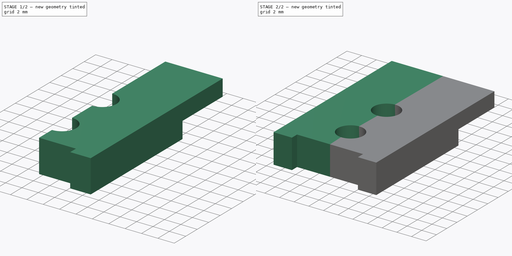
[diagram: build sequence overview — one tinted view per stage of 2, left to right]
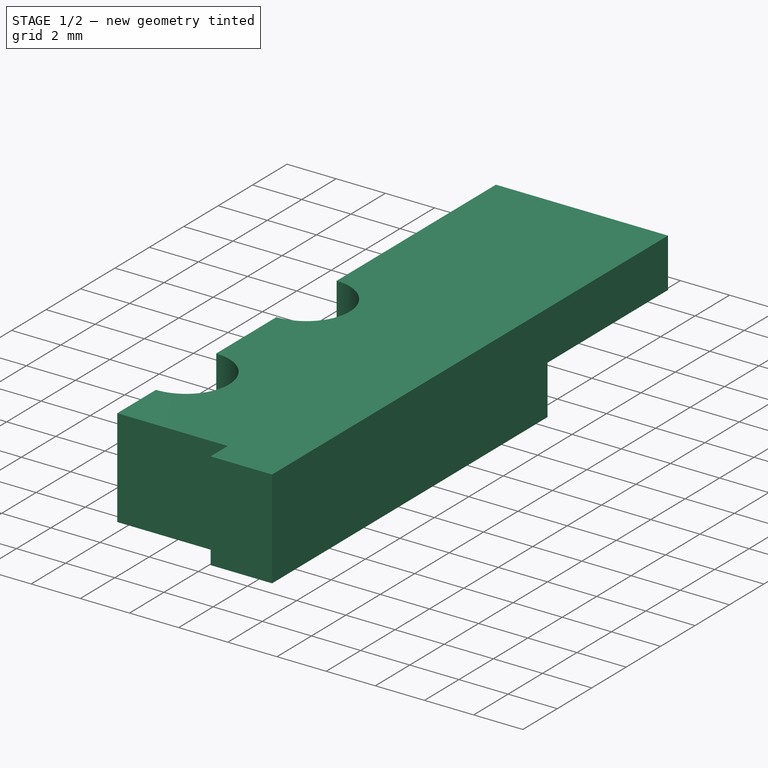
[diagram: stage 1 of 2 — iso view after this stage's code; geometry added in this stage tinted green]
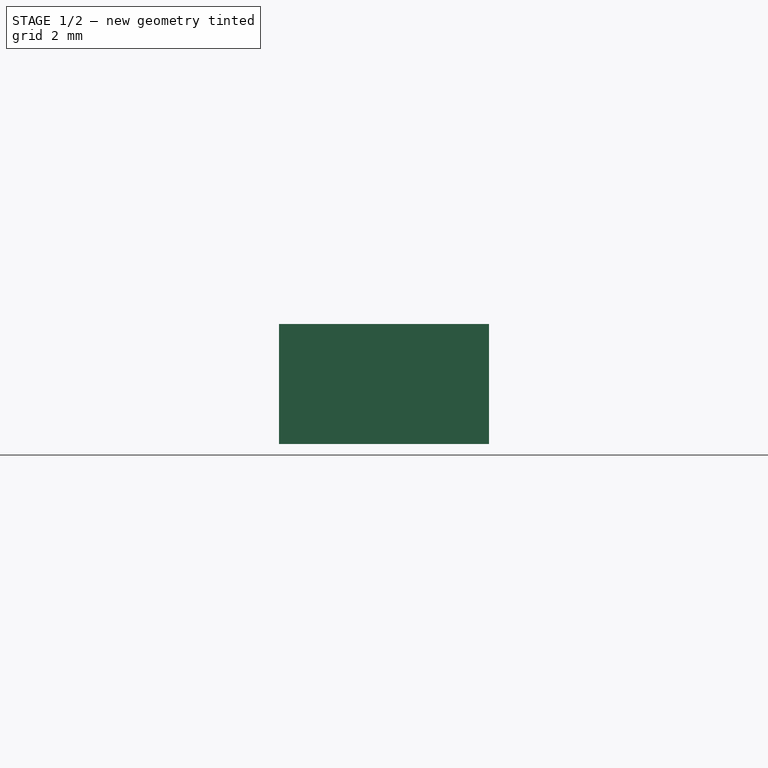
[diagram: stage 1 of 2 — front view after this stage's code; geometry added in this stage tinted green]
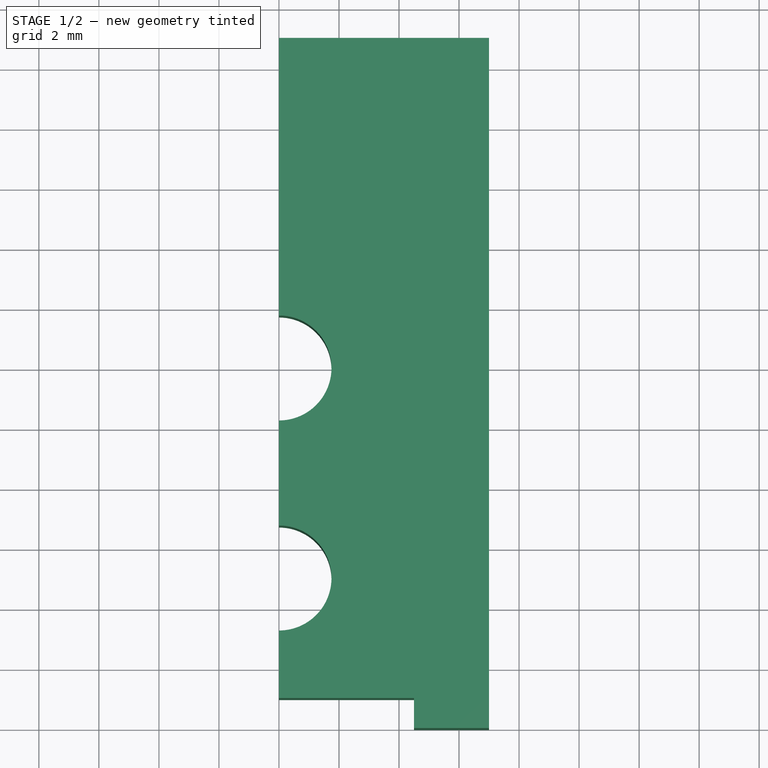
[diagram: stage 1 of 2 — top view after this stage's code; geometry added in this stage tinted green]
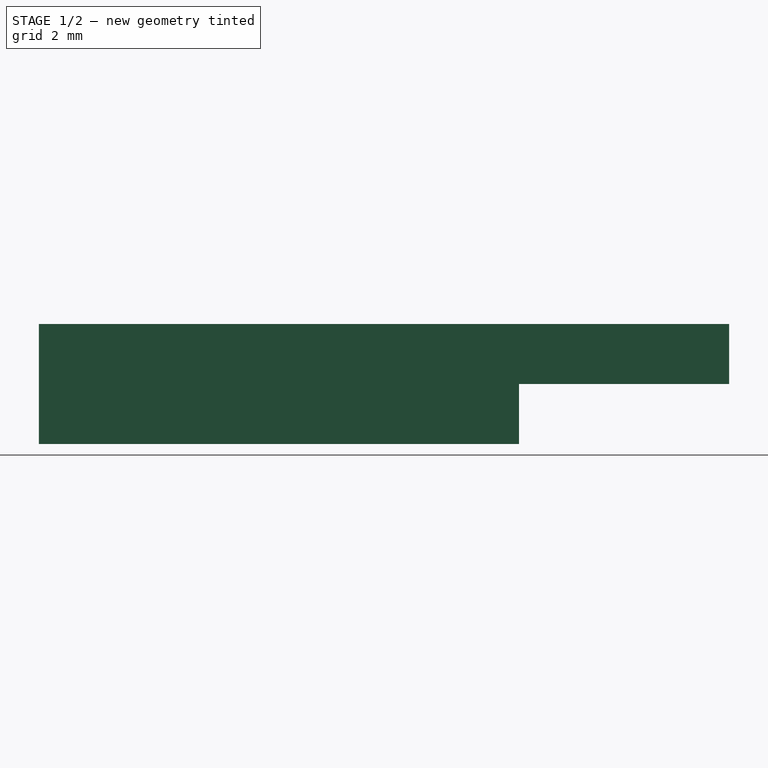
[diagram: stage 1 of 2 — right view after this stage's code; geometry added in this stage tinted green]
FCSTD DOCUMENT  (FreeCAD 0.19R24366 (Git))
Label: СхватОбечайки
License: All rights reserved
LicenseURL: http://en.wikipedia.org/wiki/All_rights_reserved
objects: Sketcher::SketchObject×2, PartDesign::Pad×1, PartDesign::Pocket×1, PartDesign::Mirrored×1, PartDesign::Body×1
note: 8 computed .brp shape members not serialized (recipe doc carries the construction recipe); baked Part::Feature solids carry a one-line shape summary decoded from their .brp

FEATURE [Sketcher::SketchObject] Sketch
  FullyConstrained = true
  MapMode = 5
  Support = -> [XY_Plane]
  sketch-geometry (11):
    g0: ArcOfCircle CenterX=0 CenterY=0 CenterZ=0 NormalX=0 NormalY=0 NormalZ=1 AngleXU=0 Radius=1.75 StartAngle=4.71239 EndAngle=7.85398
    g1: ArcOfCircle CenterX=0 CenterY=-7 CenterZ=0 NormalX=0 NormalY=0 NormalZ=1 AngleXU=0 Radius=1.75 StartAngle=4.71239 EndAngle=7.85398
    g2: LineSegment StartX=5e-16 StartY=-5.25 StartZ=0 EndX=0 EndY=-1.75 EndZ=0
    g3: LineSegment StartX=-3e-16 StartY=-8.75 StartZ=0 EndX=-3e-16 EndY=-11 EndZ=0
    g4: LineSegment StartX=-3e-16 StartY=-11 StartZ=0 EndX=4.5 EndY=-11 EndZ=0
    g5: LineSegment StartX=4.5 StartY=-11 StartZ=0 EndX=4.5 EndY=-12 EndZ=0
    g6: LineSegment StartX=4.5 StartY=-12 StartZ=0 EndX=7 EndY=-12 EndZ=0
    g7: LineSegment StartX=7 StartY=-12 StartZ=0 EndX=7 EndY=11 EndZ=0
    g8: LineSegment StartX=7 StartY=11 StartZ=0 EndX=0 EndY=11 EndZ=0
    g9: LineSegment StartX=0 StartY=11 StartZ=0 EndX=5e-16 EndY=1.75 EndZ=0
    g10: LineSegment StartX=0 StartY=4 StartZ=0 EndX=7 EndY=4 EndZ=0
  constraints (35):
    c: Coincident(g0,g-1)
    c: PointOnObject(g0,g-2)
    c: PointOnObject(g0,g-2)
    c: PointOnObject(g1,g-2)
    c: PointOnObject(g1,g-2)
    c: PointOnObject(g1,g-2)
    c: Coincident(g2,g1)
    c: Coincident(g2,g0)
    c: Coincident(g1,g3)
    c: Coincident(g3,g4)
    c: Horizontal(g4)
    c: Coincident(g4,g5)
    c: Vertical(g5)
    c: Coincident(g5,g6)
    c: Horizontal(g6)
    c: Coincident(g6,g7)
    c: Vertical(g7)
    c: Coincident(g7,g8)
    c: PointOnObject(g8,g-2)
    c: Horizontal(g8)
    c: Coincident(g8,g9)
    c: Coincident(g9,g0)
    c: Vertical(g3)
    c: Equal(g1,g0)
    c: Diameter(g0) = 3.5
    c: DistanceY(g1) = -7
    c: DistanceY(g3,g1) = 4
    c: DistanceX(g4) = 4.5
    c: PointOnObject(g10,g9)
    c: PointOnObject(g10,g7)
    c: Horizontal(g10)
    c: DistanceY(g10) = 4
    c: DistanceY(g10,g8) = 7
    c: Distance(g0,g7) = 7
    c: Distance(g5) = 1
FEATURE [Sketcher::SketchObject] Sketch001
  FullyConstrained = true
  MapMode = 5
  Support = -> [XY_Plane]
  expr: Constraints[34] = Sketch.Constraints[34]
  expr: Constraints[33] = Sketch.Constraints[33]
  expr: Constraints[27] = Sketch.Constraints[27]
  expr: Constraints[32] = Sketch.Constraints[32]
  expr: Constraints[26] = Sketch.Constraints[26]
  expr: Constraints[31] = Sketch.Constraints[31]
  expr: Constraints[25] = Sketch.Constraints[25]
  expr: Constraints[24] = Sketch.Constraints[24]
  sketch-geometry (15):
    g0: ArcOfCircle CenterX=0 CenterY=0 CenterZ=0 NormalX=0 NormalY=0 NormalZ=1 AngleXU=0 Radius=1.75 StartAngle=4.71239 EndAngle=7.85398
    g1: ArcOfCircle CenterX=0 CenterY=-7 CenterZ=0 NormalX=0 NormalY=0 NormalZ=1 AngleXU=0 Radius=1.75 StartAngle=4.71239 EndAngle=7.85398
    g2: LineSegment StartX=5e-16 StartY=-5.25 StartZ=0 EndX=-3e-16 EndY=-1.75 EndZ=0
    g3: LineSegment StartX=-3e-16 StartY=-8.75 StartZ=0 EndX=-3e-16 EndY=-11 EndZ=0
    g4: LineSegment StartX=-3e-16 StartY=-11 StartZ=0 EndX=4.5 EndY=-11 EndZ=0
    g5: LineSegment StartX=4.5 StartY=-11 StartZ=0 EndX=4.5 EndY=-12 EndZ=0
    g6: LineSegment StartX=4.5 StartY=-12 StartZ=0 EndX=7 EndY=-12 EndZ=0
    g7: LineSegment StartX=7 StartY=-12 StartZ=0 EndX=7 EndY=11 EndZ=0
    g8: LineSegment StartX=7 StartY=11 StartZ=0 EndX=0 EndY=11 EndZ=0
    g9: LineSegment StartX=0 StartY=11 StartZ=0 EndX=5e-16 EndY=1.75 EndZ=0
    g10: LineSegment StartX=0 StartY=4 StartZ=0 EndX=7 EndY=4 EndZ=0
    g11: LineSegment StartX=7 StartY=4 StartZ=0 EndX=0 EndY=4 EndZ=0
    g12: LineSegment StartX=0 StartY=4 StartZ=0 EndX=0 EndY=11 EndZ=0
    g13: LineSegment StartX=0 StartY=11 StartZ=0 EndX=7 EndY=11 EndZ=0
    g14: LineSegment StartX=7 StartY=11 StartZ=0 EndX=7 EndY=4 EndZ=0
  constraints (45):
    c: Coincident(g0,g-1)
    c: PointOnObject(g0,g-2)
    c: PointOnObject(g0,g-2)
    c: PointOnObject(g1,g-2)
    c: PointOnObject(g1,g-2)
    c: PointOnObject(g1,g-2)
    c: Coincident(g2,g1)
    c: Coincident(g2,g0)
    c: Coincident(g1,g3)
    c: Coincident(g3,g4)
    c: Horizontal(g4)
    c: Coincident(g4,g5)
    c: Vertical(g5)
    c: Coincident(g5,g6)
    c: Horizontal(g6)
    c: Coincident(g6,g7)
    c: Vertical(g7)
    c: Coincident(g7,g8)
    c: PointOnObject(g8,g-2)
    c: Horizontal(g8)
    c: Coincident(g8,g9)
    c: Coincident(g9,g0)
    c: Vertical(g3)
    c: Equal(g1,g0)
    c: Diameter(g0) = 3.5
    c: DistanceY(g1) = -7
    c: DistanceY(g3,g1) = 4
    c: DistanceX(g4) = 4.5
    c: PointOnObject(g10,g9)
    c: PointOnObject(g10,g7)
    c: Horizontal(g10)
    c: DistanceY(g10) = 4
    c: DistanceY(g10,g8) = 7
    c: Distance(g0,g7) = 7
    c: Distance(g5) = 1
    c: Coincident(g11,g12)
    c: Coincident(g12,g13)
    c: Coincident(g13,g14)
    c: Coincident(g14,g11)
    c: Horizontal(g11)
    c: Horizontal(g13)
    c: Vertical(g12)
    c: Vertical(g14)
    c: Coincident(g11,g10)
    c: Coincident(g12,g8)
FEATURE [PartDesign::Pad] Pad
  Direction = (1,1,1)
  Length = 4
  Length2 = 100
  Profile = -> Sketch
  Type = 0
FEATURE [PartDesign::Pocket] Pocket
  BaseFeature = -> Pad
  Length = 2
  Length2 = 100
  Profile = -> Sketch001
  Reversed = true
  Type = 0
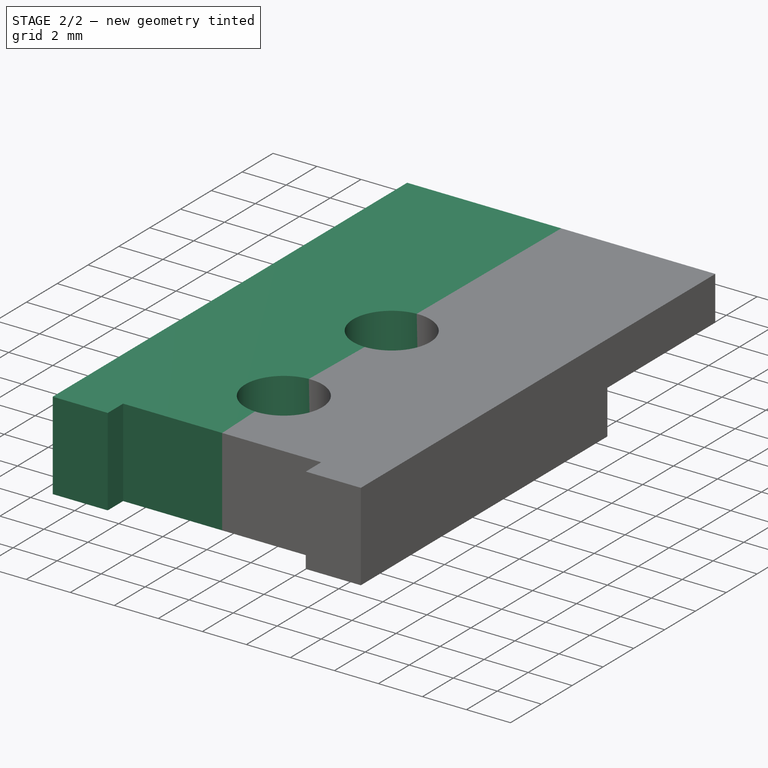
[diagram: stage 2 of 2 — iso view after this stage's code; geometry added in this stage tinted green]
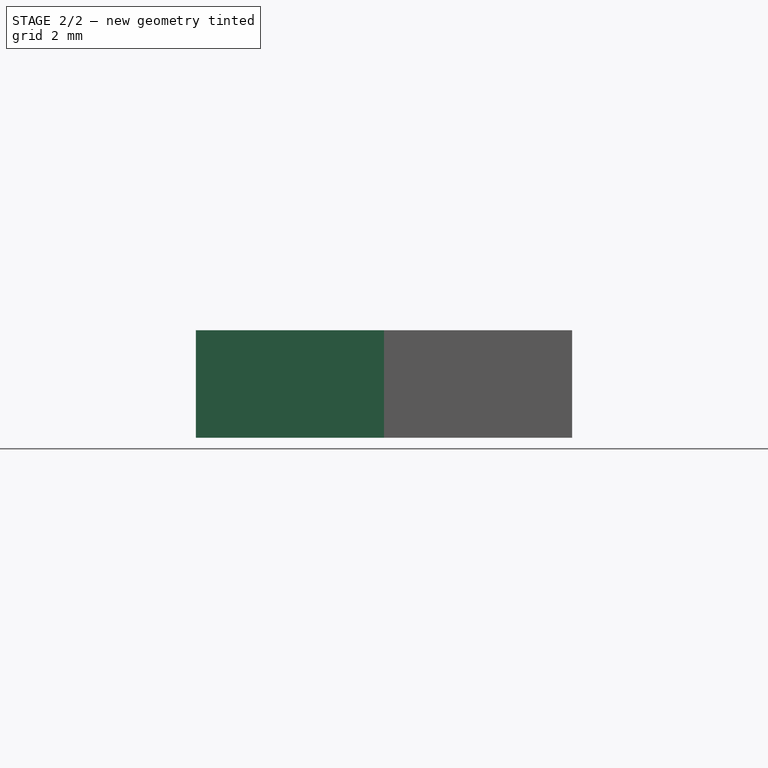
[diagram: stage 2 of 2 — front view after this stage's code; geometry added in this stage tinted green]
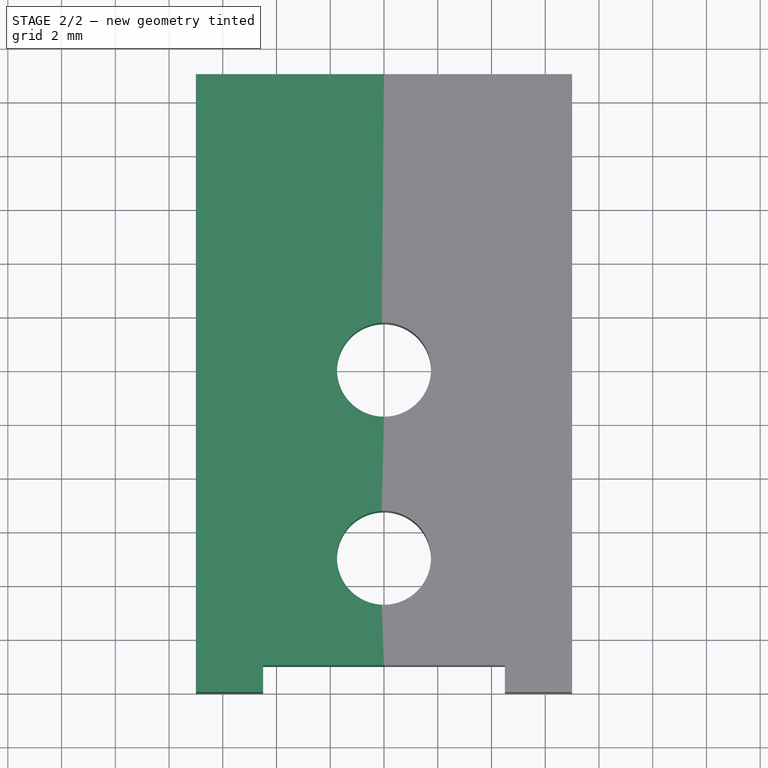
[diagram: stage 2 of 2 — top view after this stage's code; geometry added in this stage tinted green]
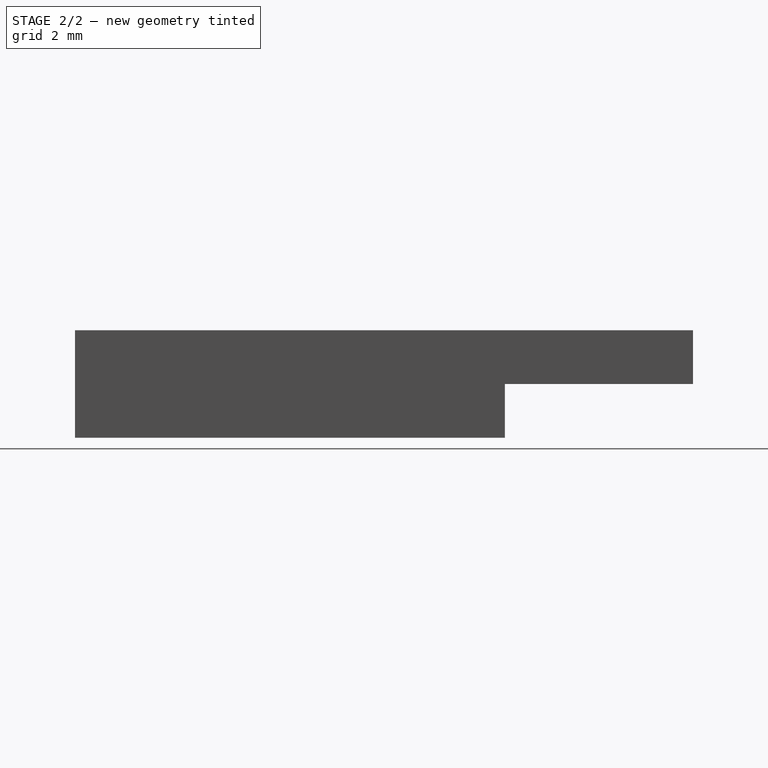
[diagram: stage 2 of 2 — right view after this stage's code; geometry added in this stage tinted green]
FEATURE [PartDesign::Mirrored] Mirrored
  BaseFeature = -> Pocket
  MirrorPlane = -> Sketch [V_Axis]
  Originals = -> [Pad,Pocket]
FEATURE [PartDesign::Body] Body
  Group = -> [Sketch,Sketch001,Pad,Pocket,Mirrored]
  Origin = -> Origin
  Tip = -> Mirrored
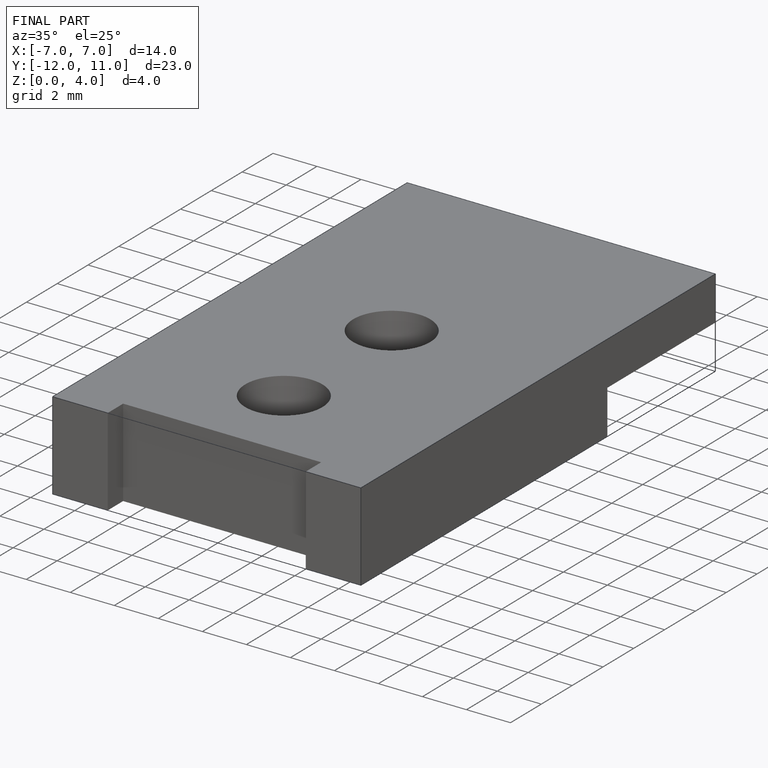
[diagram: finished part — iso view with bounding-box wireframe]
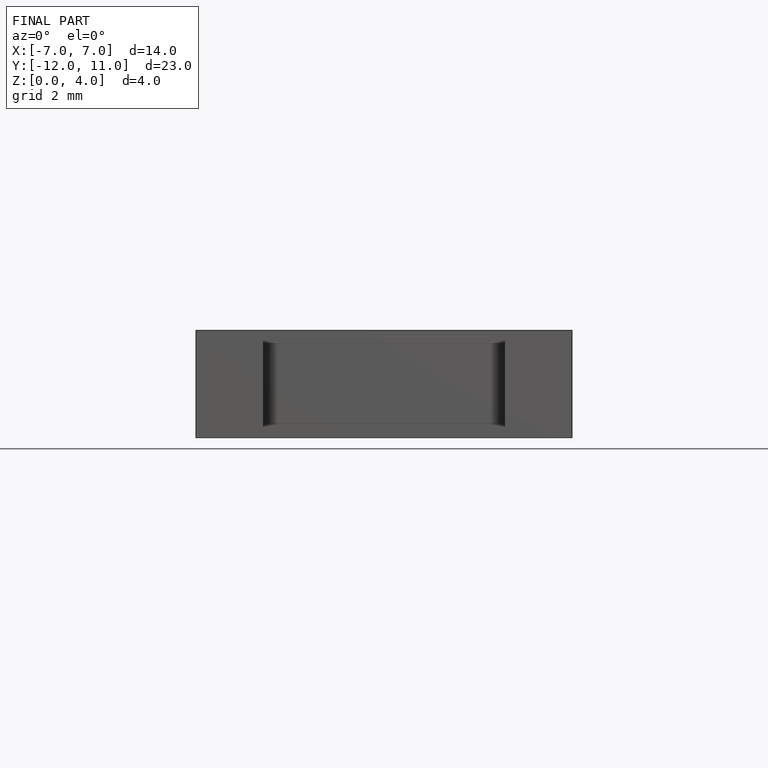
[diagram: finished part — front view with bounding-box wireframe]
